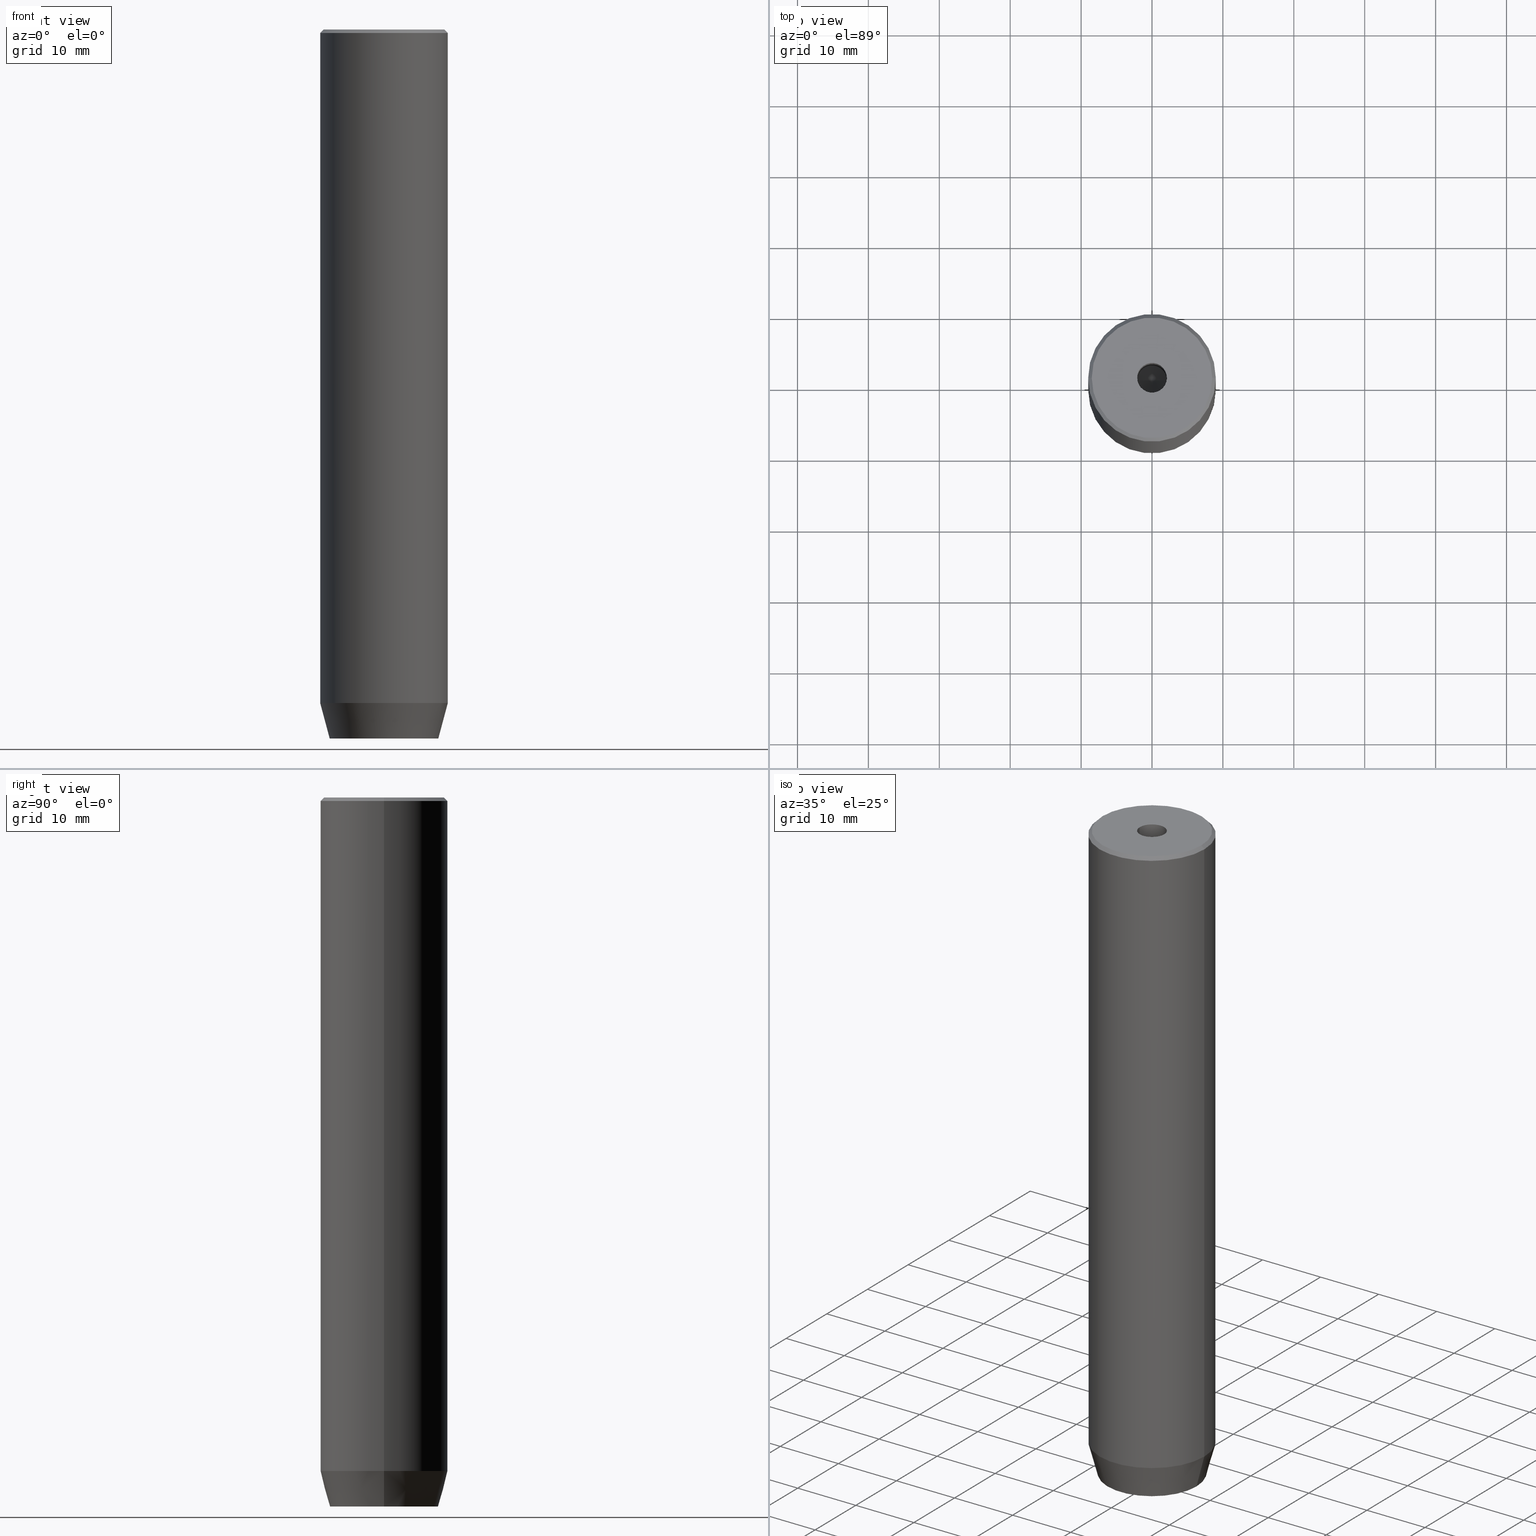
[diagram: canonical four-view strip — front | top / right | iso, engineering-drawing reading convention]
A machine part, canonical four-view strip (front | top / right | iso — engineering-drawing reading convention). The complete STEP part file that produces these views, byte-faithful:
ISO-10303-21;
HEADER;
FILE_DESCRIPTION (( 'STEP AP203' ),
    '1' );
FILE_NAME ('659f.STEP',
    '2024-01-02T20:37:00',
    ( '' ),
    ( '' ),
    'SwSTEP 2.0',
    'SolidWorks 2019',
    '' );
FILE_SCHEMA (( 'CONFIG_CONTROL_DESIGN' ));
ENDSEC;

DATA;
#1 = FACE_OUTER_BOUND ( 'NONE', #578, .T. ) ;
#2 = VERTEX_POINT ( 'NONE', #46 ) ;
#3 = PERSON_AND_ORGANIZATION ( #60, #258 ) ;
#4 = CARTESIAN_POINT ( 'NONE',  ( -5.207640850796248781E-15, 0.000000000000000000, -21.26180729995787999 ) ) ;
#5 = CARTESIAN_POINT ( 'NONE',  ( 1.500000000000000222, -2.598076211353315568, -97.20000000000000284 ) ) ;
#6 = VECTOR ( 'NONE', #280, 1000.000000000000000 ) ;
#7 = APPROVAL ( #540, 'NEUR�EN�' ) ;
#8 = DIRECTION ( 'NONE',  ( 0.000000000000000000, 0.000000000000000000, 1.000000000000000000 ) ) ;
#9 = ADVANCED_FACE ( 'NONE', ( #105 ), #510, .F. ) ;
#10 = DIRECTION ( 'NONE',  ( -0.000000000000000000, -0.000000000000000000, 1.000000000000000000 ) ) ;
#11 = ORIENTED_EDGE ( 'NONE', *, *, #97, .F. ) ;
#12 = ORIENTED_EDGE ( 'NONE', *, *, #469, .T. ) ;
#13 = PERSON_AND_ORGANIZATION_ROLE ( 'design_owner' ) ;
#14 = CARTESIAN_POINT ( 'NONE',  ( -2.168404344971008868E-16, -3.464101615137754830, -100.0000000000000000 ) ) ;
#15 = CALENDAR_DATE ( 2024, 2, 1 ) ;
#16 = DIRECTION ( 'NONE',  ( -0.8660254037844385966, -0.5000000000000001110, 0.000000000000000000 ) ) ;
#17 = CC_DESIGN_APPROVAL ( #7, ( #451 ) ) ;
#18 = EDGE_CURVE ( 'NONE', #52, #363, #107, .T. ) ;
#19 = DIRECTION ( 'NONE',  ( 1.000000000000000000, 0.000000000000000000, 0.000000000000000000 ) ) ;
#20 = DIRECTION ( 'NONE',  ( 0.8660254037844385966, -0.5000000000000001110, 0.000000000000000000 ) ) ;
#21 = DIRECTION ( 'NONE',  ( -0.000000000000000000, -0.000000000000000000, 1.000000000000000000 ) ) ;
#22 = APPROVAL ( #500, 'NEUR�EN�' ) ;
#23 = CARTESIAN_POINT ( 'NONE',  ( -1.084202172485504434E-16, 3.464101615137754830, -97.20000000000000284 ) ) ;
#24 = EDGE_CURVE ( 'NONE', #128, #407, #164, .T. ) ;
#25 = DIRECTION ( 'NONE',  ( -0.000000000000000000, -0.000000000000000000, 1.000000000000000000 ) ) ;
#26 = ORIENTED_EDGE ( 'NONE', *, *, #97, .T. ) ;
#27 = ORIENTED_EDGE ( 'NONE', *, *, #427, .T. ) ;
#28 = CARTESIAN_POINT ( 'NONE',  ( -1.500000000000000666, -2.598076211353316456, -97.20000000000000284 ) ) ;
#29 = ORIENTED_EDGE ( 'NONE', *, *, #359, .T. ) ;
#30 = ADVANCED_FACE ( 'NONE', ( #476 ), #424, .F. ) ;
#31 = LINE ( 'NONE', #353, #113 ) ;
#32 = DIRECTION ( 'NONE',  ( -0.000000000000000000, -0.000000000000000000, 1.000000000000000000 ) ) ;
#33 = COORDINATED_UNIVERSAL_TIME_OFFSET ( 1, 0, .AHEAD. ) ;
#34 = CARTESIAN_POINT ( 'NONE',  ( 3.000000000000000000, 0.000000000000000000, -97.20000000000000284 ) ) ;
#35 = FACE_OUTER_BOUND ( 'NONE', #274, .T. ) ;
#36 = UNCERTAINTY_MEASURE_WITH_UNIT (LENGTH_MEASURE( 1.000000000000000082E-05 ), #278, 'distance_accuracy_value', 'NONE');
#37 = LOCAL_TIME ( 21, 37, 0.000000000000000000, #42 ) ;
#38 = LINE ( 'NONE', #543, #189 ) ;
#39 = ORIENTED_EDGE ( 'NONE', *, *, #408, .F. ) ;
#40 = ORIENTED_EDGE ( 'NONE', *, *, #205, .T. ) ;
#41 = EDGE_CURVE ( 'NONE', #480, #128, #339, .T. ) ;
#42 = COORDINATED_UNIVERSAL_TIME_OFFSET ( 1, 0, .AHEAD. ) ;
#43 = AXIS2_PLACEMENT_3D ( 'NONE', #346, #530, #219 ) ;
#44 = LINE ( 'NONE', #92, #241 ) ;
#45 = VERTEX_POINT ( 'NONE', #555 ) ;
#46 = CARTESIAN_POINT ( 'NONE',  ( -2.168404344971008868E-16, -3.464101615137754830, -97.20000000000000284 ) ) ;
#47 = DATE_AND_TIME ( #181, #37 ) ;
#48 = DIRECTION ( 'NONE',  ( -1.000000000000000000, 0.000000000000000000, -0.000000000000000000 ) ) ;
#49 = DIRECTION ( 'NONE',  ( 1.000000000000000000, 0.000000000000000000, 0.000000000000000000 ) ) ;
#50 = EDGE_LOOP ( 'NONE', ( #376, #119, #39, #29 ) ) ;
#51 = CC_DESIGN_PERSON_AND_ORGANIZATION_ASSIGNMENT ( #3, #446, ( #103 ) ) ;
#52 = VERTEX_POINT ( 'NONE', #329 ) ;
#53 = EDGE_CURVE ( 'NONE', #392, #407, #193, .T. ) ;
#54 = DIRECTION ( 'NONE',  ( 1.000000000000000000, 0.000000000000000000, 0.000000000000000000 ) ) ;
#55 = ORIENTED_EDGE ( 'NONE', *, *, #173, .F. ) ;
#56 = VECTOR ( 'NONE', #247, 1000.000000000000000 ) ;
#57 = AXIS2_PLACEMENT_3D ( 'NONE', #402, #131, #179 ) ;
#58 = CARTESIAN_POINT ( 'NONE',  ( 0.000000000000000000, 0.000000000000000000, -95.00000000000000000 ) ) ;
#59 = PERSON_AND_ORGANIZATION ( #60, #258 ) ;
#60 = PERSON ( 'NEUR�EN�', 'NEUR�EN�', 'NEUR�EN�', ('NEUR�EN�'), ('NEUR�EN�'), ('NEUR�EN�') ) ;
#61 = DIRECTION ( 'NONE',  ( 0.7071067811865549002, 8.659560562355022838E-17, -0.7071067811865401342 ) ) ;
#62 = ADVANCED_FACE ( 'NONE', ( #282 ), #538, .F. ) ;
#63 = DIRECTION ( 'NONE',  ( 1.000000000000000000, 0.000000000000000000, 0.000000000000000000 ) ) ;
#64 = VECTOR ( 'NONE', #145, 1000.000000000000000 ) ;
#65 = VECTOR ( 'NONE', #421, 1000.000000000000000 ) ;
#66 = LINE ( 'NONE', #430, #454 ) ;
#67 = CARTESIAN_POINT ( 'NONE',  ( -3.000000000000000000, -1.732050807568877859, -97.20000000000000284 ) ) ;
#68 = PRODUCT ( '659f', '659f', '', ( #327 ) ) ;
#69 = DIRECTION ( 'NONE',  ( -0.000000000000000000, -0.000000000000000000, 1.000000000000000000 ) ) ;
#70 = ADVANCED_FACE ( 'NONE', ( #493 ), #86, .F. ) ;
#71 = DIRECTION ( 'NONE',  ( -0.000000000000000000, -0.000000000000000000, 1.000000000000000000 ) ) ;
#72 = ORIENTED_EDGE ( 'NONE', *, *, #397, .T. ) ;
#73 = CC_DESIGN_APPROVAL ( #22, ( #103 ) ) ;
#74 = ORIENTED_EDGE ( 'NONE', *, *, #448, .F. ) ;
#75 = CARTESIAN_POINT ( 'NONE',  ( 3.000000000000000000, -1.732050807568876527, -97.20000000000000284 ) ) ;
#76 = VECTOR ( 'NONE', #431, 1000.000000000000000 ) ;
#77 = ORIENTED_EDGE ( 'NONE', *, *, #348, .F. ) ;
#78 = ORIENTED_EDGE ( 'NONE', *, *, #375, .F. ) ;
#79 = DIRECTION ( 'NONE',  ( 1.000000000000000000, 0.000000000000000000, 0.000000000000000000 ) ) ;
#80 = EDGE_CURVE ( 'NONE', #177, #272, #312, .T. ) ;
#81 = ORIENTED_EDGE ( 'NONE', *, *, #236, .T. ) ;
#82 = DIRECTION ( 'NONE',  ( -0.000000000000000000, -0.000000000000000000, 1.000000000000000000 ) ) ;
#83 = ORIENTED_EDGE ( 'NONE', *, *, #80, .T. ) ;
#84 = CARTESIAN_POINT ( 'NONE',  ( -3.000000000000000000, -1.732050807568877859, -100.0000000000000000 ) ) ;
#85 = VECTOR ( 'NONE', #100, 1000.000000000000000 ) ;
#86 = PLANE ( 'NONE',  #253 ) ;
#87 = CARTESIAN_POINT ( 'NONE',  ( -9.000000000000000000, 1.102182119232617714E-15, -95.00000000000000000 ) ) ;
#88 = CALENDAR_DATE ( 2024, 2, 1 ) ;
#89 = DIRECTION ( 'NONE',  ( 1.000000000000000000, 0.000000000000000000, 0.000000000000000000 ) ) ;
#90 = ORIENTED_EDGE ( 'NONE', *, *, #415, .F. ) ;
#91 = ADVANCED_FACE ( 'NONE', ( #459, #151 ), #361, .T. ) ;
#92 = CARTESIAN_POINT ( 'NONE',  ( 3.000000000000000000, 1.732050807568876527, -97.20000000000000284 ) ) ;
#93 = VERTEX_POINT ( 'NONE', #4 ) ;
#94 = VECTOR ( 'NONE', #25, 1000.000000000000000 ) ;
#95 = DIRECTION ( 'NONE',  ( -0.000000000000000000, -0.000000000000000000, 1.000000000000000000 ) ) ;
#96 = ORIENTED_EDGE ( 'NONE', *, *, #436, .F. ) ;
#97 = EDGE_CURVE ( 'NONE', #93, #106, #195, .T. ) ;
#98 = DIRECTION ( 'NONE',  ( 1.000000000000000000, 0.000000000000000000, 0.000000000000000000 ) ) ;
#99 = ORIENTED_EDGE ( 'NONE', *, *, #513, .T. ) ;
#100 = DIRECTION ( 'NONE',  ( -0.000000000000000000, -0.000000000000000000, 1.000000000000000000 ) ) ;
#101 = ADVANCED_FACE ( 'NONE', ( #344 ), #426, .F. ) ;
#102 = DATE_AND_TIME ( #156, #273 ) ;
#103 = PRODUCT_DEFINITION_FORMATION_WITH_SPECIFIED_SOURCE ( 'LIBOVOLN�', '', #68, .NOT_KNOWN. ) ;
#104 = DIRECTION ( 'NONE',  ( -1.000000000000000000, 0.000000000000000000, -0.000000000000000000 ) ) ;
#105 = FACE_OUTER_BOUND ( 'NONE', #217, .T. ) ;
#106 = VERTEX_POINT ( 'NONE', #297 ) ;
#107 = CIRCLE ( 'NONE', #443, 7.660254037844380193 ) ;
#108 = CONICAL_SURFACE ( 'NONE', #233, 9.000000000000000000, 0.2617993877991502405 ) ;
#109 = APPROVAL_ROLE ( '' ) ;
#110 = CARTESIAN_POINT ( 'NONE',  ( -1.500000000000000666, -2.598076211353316456, -97.20000000000000284 ) ) ;
#111 = CARTESIAN_POINT ( 'NONE',  ( 0.000000000000000000, 0.000000000000000000, -97.20000000000000284 ) ) ;
#112 = PLANE ( 'NONE',  #551 ) ;
#113 = VECTOR ( 'NONE', #129, 1000.000000000000114 ) ;
#114 = VECTOR ( 'NONE', #333, 999.9999999999998863 ) ;
#115 = CARTESIAN_POINT ( 'NONE',  ( 2.099999999999996092, 0.000000000000000000, -20.00000000000000000 ) ) ;
#116 = CC_DESIGN_DATE_AND_TIME_ASSIGNMENT ( #467, #457, ( #483 ) ) ;
#117 = EDGE_CURVE ( 'NONE', #93, #323, #248, .T. ) ;
#118 = FACE_OUTER_BOUND ( 'NONE', #194, .T. ) ;
#119 = ORIENTED_EDGE ( 'NONE', *, *, #336, .F. ) ;
#120 = DIRECTION ( 'NONE',  ( -0.000000000000000000, -0.000000000000000000, 1.000000000000000000 ) ) ;
#121 = EDGE_LOOP ( 'NONE', ( #548, #162 ) ) ;
#122 = ORIENTED_EDGE ( 'NONE', *, *, #436, .T. ) ;
#123 = VECTOR ( 'NONE', #82, 1000.000000000000000 ) ;
#124 = CARTESIAN_POINT ( 'NONE',  ( -3.000000000000000888, 1.732050807568876527, -97.20000000000000284 ) ) ;
#125 = EDGE_CURVE ( 'NONE', #407, #471, #572, .T. ) ;
#126 = CC_DESIGN_PERSON_AND_ORGANIZATION_ASSIGNMENT ( #196, #377, ( #483 ) ) ;
#127 = CARTESIAN_POINT ( 'NONE',  ( -2.168404344971008868E-16, -3.464101615137754830, -97.20000000000000284 ) ) ;
#128 = VERTEX_POINT ( 'NONE', #466 ) ;
#129 = DIRECTION ( 'NONE',  ( 0.2588190451025214611, 0.000000000000000000, 0.9659258262890679791 ) ) ;
#130 = CC_DESIGN_APPROVAL ( #575, ( #483 ) ) ;
#131 = DIRECTION ( 'NONE',  ( 0.5000000000000001110, -0.8660254037844385966, 0.000000000000000000 ) ) ;
#132 = DIRECTION ( 'NONE',  ( 1.000000000000000000, 0.000000000000000000, 0.000000000000000000 ) ) ;
#133 = EDGE_CURVE ( 'NONE', #106, #511, #468, .T. ) ;
#134 = VECTOR ( 'NONE', #16, 1000.000000000000000 ) ;
#135 = VECTOR ( 'NONE', #386, 1000.000000000000000 ) ;
#136 = APPROVAL_ROLE ( '' ) ;
#137 = ORIENTED_EDGE ( 'NONE', *, *, #262, .T. ) ;
#138 = CARTESIAN_POINT ( 'NONE',  ( 0.000000000000000000, 0.000000000000000000, -1.990051048614449116E-16 ) ) ;
#139 = VERTEX_POINT ( 'NONE', #526 ) ;
#140 = PERSON_AND_ORGANIZATION ( #60, #258 ) ;
#141 = CARTESIAN_POINT ( 'NONE',  ( 0.000000000000000000, 0.000000000000000000, -1.990051048614449116E-16 ) ) ;
#142 = ORIENTED_EDGE ( 'NONE', *, *, #168, .T. ) ;
#143 = DIRECTION ( 'NONE',  ( 0.000000000000000000, 0.000000000000000000, -1.000000000000000000 ) ) ;
#144 = CC_DESIGN_PERSON_AND_ORGANIZATION_ASSIGNMENT ( #373, #13, ( #68 ) ) ;
#145 = DIRECTION ( 'NONE',  ( 0.8660254037844385966, -0.5000000000000001110, 0.000000000000000000 ) ) ;
#146 = ORIENTED_EDGE ( 'NONE', *, *, #415, .T. ) ;
#147 = EDGE_CURVE ( 'NONE', #392, #246, #388, .T. ) ;
#148 = CARTESIAN_POINT ( 'NONE',  ( 0.000000000000000000, 3.464101615137754386, -100.0000000000000000 ) ) ;
#149 = ORIENTED_EDGE ( 'NONE', *, *, #147, .F. ) ;
#150 = ORIENTED_EDGE ( 'NONE', *, *, #199, .F. ) ;
#151 = FACE_OUTER_BOUND ( 'NONE', #121, .T. ) ;
#152 = APPROVAL_DATE_TIME ( #102, #575 ) ;
#153 = PLANE ( 'NONE',  #310 ) ;
#154 = ORIENTED_EDGE ( 'NONE', *, *, #348, .T. ) ;
#155 = EDGE_CURVE ( 'NONE', #514, #177, #289, .T. ) ;
#156 = CALENDAR_DATE ( 2024, 2, 1 ) ;
#157 = LINE ( 'NONE', #67, #76 ) ;
#158 = CARTESIAN_POINT ( 'NONE',  ( 0.000000000000000000, 0.000000000000000000, -100.0000000000000000 ) ) ;
#159 = EDGE_CURVE ( 'NONE', #480, #471, #428, .T. ) ;
#160 = VECTOR ( 'NONE', #391, 1000.000000000000000 ) ;
#161 = FACE_OUTER_BOUND ( 'NONE', #502, .T. ) ;
#162 = ORIENTED_EDGE ( 'NONE', *, *, #18, .F. ) ;
#163 = CARTESIAN_POINT ( 'NONE',  ( 0.000000000000000000, 0.000000000000000000, -20.00000000000000000 ) ) ;
#164 = LINE ( 'NONE', #525, #56 ) ;
#165 = CARTESIAN_POINT ( 'NONE',  ( -2.099999999999997424, 2.571758278209438506E-16, 0.000000000000000000 ) ) ;
#166 = ADVANCED_FACE ( 'NONE', ( #254 ), #153, .F. ) ;
#167 = FACE_OUTER_BOUND ( 'NONE', #581, .T. ) ;
#168 = EDGE_CURVE ( 'NONE', #547, #272, #157, .T. ) ;
#169 = ORIENTED_EDGE ( 'NONE', *, *, #147, .T. ) ;
#170 = CYLINDRICAL_SURFACE ( 'NONE', #371, 9.000000000000000000 ) ;
#171 = ADVANCED_BREP_SHAPE_REPRESENTATION ( '659f', ( #557, #220 ), #367 ) ;
#172 = ORIENTED_EDGE ( 'NONE', *, *, #125, .T. ) ;
#173 = EDGE_CURVE ( 'NONE', #246, #392, #586, .T. ) ;
#174 = CARTESIAN_POINT ( 'NONE',  ( 2.099999999999996092, 0.000000000000000000, -20.00000000000000000 ) ) ;
#175 = ORIENTED_EDGE ( 'NONE', *, *, #427, .F. ) ;
#176 = DIRECTION ( 'NONE',  ( -0.000000000000000000, -0.000000000000000000, 1.000000000000000000 ) ) ;
#177 = VERTEX_POINT ( 'NONE', #14 ) ;
#178 = CARTESIAN_POINT ( 'NONE',  ( 0.000000000000000000, 0.000000000000000000, 0.000000000000000000 ) ) ;
#179 = DIRECTION ( 'NONE',  ( 0.8660254037844385966, 0.5000000000000001110, 0.000000000000000000 ) ) ;
#180 = CARTESIAN_POINT ( 'NONE',  ( 0.000000000000000000, 0.000000000000000000, 0.000000000000000000 ) ) ;
#181 = CALENDAR_DATE ( 2024, 2, 1 ) ;
#182 = DIRECTION ( 'NONE',  ( -0.8660254037844385966, -0.5000000000000001110, 0.000000000000000000 ) ) ;
#183 = AXIS2_PLACEMENT_3D ( 'NONE', #406, #225, #403 ) ;
#184 = CARTESIAN_POINT ( 'NONE',  ( -3.000000000000000444, -7.511572993685800087E-16, -100.0000000000000000 ) ) ;
#185 = ORIENTED_EDGE ( 'NONE', *, *, #117, .F. ) ;
#186 = DIRECTION ( 'NONE',  ( -0.000000000000000000, -0.000000000000000000, 1.000000000000000000 ) ) ;
#187 = ORIENTED_EDGE ( 'NONE', *, *, #205, .F. ) ;
#188 = LINE ( 'NONE', #184, #6 ) ;
#189 = VECTOR ( 'NONE', #587, 1000.000000000000000 ) ;
#190 = CONICAL_SURFACE ( 'NONE', #319, 2.099999999999996092, 1.029744258676652091 ) ;
#191 = ORIENTED_EDGE ( 'NONE', *, *, #375, .T. ) ;
#192 = EDGE_LOOP ( 'NONE', ( #343, #169, #423, #450 ) ) ;
#193 = LINE ( 'NONE', #369, #85 ) ;
#194 = EDGE_LOOP ( 'NONE', ( #508, #235 ) ) ;
#195 = LINE ( 'NONE', #243, #65 ) ;
#196 = PERSON_AND_ORGANIZATION ( #60, #258 ) ;
#197 = CC_DESIGN_PERSON_AND_ORGANIZATION_ASSIGNMENT ( #495, #230, ( #103 ) ) ;
#198 = DIRECTION ( 'NONE',  ( 1.000000000000000000, 0.000000000000000000, 0.000000000000000000 ) ) ;
#199 = EDGE_CURVE ( 'NONE', #52, #392, #565, .T. ) ;
#200 = CARTESIAN_POINT ( 'NONE',  ( 0.000000000000000000, 0.000000000000000000, 0.000000000000000000 ) ) ;
#201 = LINE ( 'NONE', #472, #114 ) ;
#202 = CONICAL_SURFACE ( 'NONE', #501, 2.099999999999996092, 1.029744258676652091 ) ;
#203 = VECTOR ( 'NONE', #537, 1000.000000000000000 ) ;
#204 = DIRECTION ( 'NONE',  ( 0.000000000000000000, 0.000000000000000000, -1.000000000000000000 ) ) ;
#205 = EDGE_CURVE ( 'NONE', #139, #390, #201, .T. ) ;
#206 = CARTESIAN_POINT ( 'NONE',  ( 0.000000000000000000, 0.000000000000000000, 0.000000000000000000 ) ) ;
#207 = ADVANCED_FACE ( 'NONE', ( #161 ), #112, .T. ) ;
#208 = DIRECTION ( 'NONE',  ( 0.000000000000000000, 0.000000000000000000, -1.000000000000000000 ) ) ;
#209 = DIRECTION ( 'NONE',  ( 0.000000000000000000, -0.000000000000000000, 1.000000000000000000 ) ) ;
#210 = APPROVAL_PERSON_ORGANIZATION ( #59, #575, #109 ) ;
#211 = EDGE_LOOP ( 'NONE', ( #74, #435, #507, #416, #279, #90 ) ) ;
#212 = AXIS2_PLACEMENT_3D ( 'NONE', #384, #422, #198 ) ;
#213 = CONICAL_SURFACE ( 'NONE', #541, 8.499999999999980460, 0.7853981633974587151 ) ;
#214 = CARTESIAN_POINT ( 'NONE',  ( 9.000000000000000000, 0.000000000000000000, 0.000000000000000000 ) ) ;
#215 = ORIENTED_EDGE ( 'NONE', *, *, #224, .F. ) ;
#216 = LINE ( 'NONE', #342, #135 ) ;
#217 = EDGE_LOOP ( 'NONE', ( #259, #215, #265, #420 ) ) ;
#218 = VERTEX_POINT ( 'NONE', #290 ) ;
#219 = DIRECTION ( 'NONE',  ( 1.000000000000000000, 0.000000000000000000, 0.000000000000000000 ) ) ;
#220 = AXIS2_PLACEMENT_3D ( 'NONE', #515, #8, #286 ) ;
#221 = ORIENTED_EDGE ( 'NONE', *, *, #173, .T. ) ;
#222 = CARTESIAN_POINT ( 'NONE',  ( 7.660254037844380193, 0.000000000000000000, -100.0000000000000000 ) ) ;
#223 = AXIS2_PLACEMENT_3D ( 'NONE', #58, #244, #19 ) ;
#224 = EDGE_CURVE ( 'NONE', #323, #106, #482, .T. ) ;
#225 = DIRECTION ( 'NONE',  ( -0.4999999999999999445, 0.8660254037844387076, 0.000000000000000000 ) ) ;
#226 = EDGE_CURVE ( 'NONE', #128, #480, #370, .T. ) ;
#227 = SECURITY_CLASSIFICATION_LEVEL ( 'unclassified' ) ;
#228 = FACE_OUTER_BOUND ( 'NONE', #192, .T. ) ;
#229 = ORIENTED_EDGE ( 'NONE', *, *, #18, .T. ) ;
#230 = PERSON_AND_ORGANIZATION_ROLE ( 'creator' ) ;
#231 = DIRECTION ( 'NONE',  ( -0.000000000000000000, -0.000000000000000000, 1.000000000000000000 ) ) ;
#232 = ORIENTED_EDGE ( 'NONE', *, *, #448, .T. ) ;
#233 = AXIS2_PLACEMENT_3D ( 'NONE', #439, #176, #434 ) ;
#234 = ADVANCED_FACE ( 'NONE', ( #249 ), #532, .T. ) ;
#235 = ORIENTED_EDGE ( 'NONE', *, *, #41, .T. ) ;
#236 = EDGE_CURVE ( 'NONE', #390, #218, #66, .T. ) ;
#237 = DIRECTION ( 'NONE',  ( -0.000000000000000000, -0.000000000000000000, 1.000000000000000000 ) ) ;
#238 = DIRECTION ( 'NONE',  ( 1.000000000000000000, 0.000000000000000000, 0.000000000000000000 ) ) ;
#239 = LOCAL_TIME ( 21, 37, 0.000000000000000000, #584 ) ;
#240 = VERTEX_POINT ( 'NONE', #385 ) ;
#241 = VECTOR ( 'NONE', #315, 1000.000000000000000 ) ;
#242 = VECTOR ( 'NONE', #61, 1000.000000000000000 ) ;
#243 = CARTESIAN_POINT ( 'NONE',  ( -2.099999999999996092, 2.571758278209436534E-16, -20.00000000000000000 ) ) ;
#244 = DIRECTION ( 'NONE',  ( -0.000000000000000000, -0.000000000000000000, 1.000000000000000000 ) ) ;
#245 = ADVANCED_FACE ( 'NONE', ( #338, #118 ), #396, .T. ) ;
#246 = VERTEX_POINT ( 'NONE', #303 ) ;
#247 = DIRECTION ( 'NONE',  ( -0.7071067811865549002, 0.000000000000000000, -0.7071067811865401342 ) ) ;
#248 = LINE ( 'NONE', #115, #334 ) ;
#249 = FACE_OUTER_BOUND ( 'NONE', #307, .T. ) ;
#250 = CC_DESIGN_PERSON_AND_ORGANIZATION_ASSIGNMENT ( #414, #306, ( #451 ) ) ;
#251 = VECTOR ( 'NONE', #182, 1000.000000000000000 ) ;
#252 = EDGE_CURVE ( 'NONE', #433, #514, #216, .T. ) ;
#253 = AXIS2_PLACEMENT_3D ( 'NONE', #34, #405, #542 ) ;
#254 = FACE_OUTER_BOUND ( 'NONE', #283, .T. ) ;
#255 = DIRECTION ( 'NONE',  ( 2.503857664561933362E-16, -1.000000000000000000, 0.000000000000000000 ) ) ;
#256 = ADVANCED_FACE ( 'NONE', ( #528 ), #108, .T. ) ;
#257 = DIRECTION ( 'NONE',  ( -0.000000000000000000, -0.000000000000000000, 1.000000000000000000 ) ) ;
#258 = ORGANIZATION ( 'NEUR�EN�', 'NEUR�EN�', '' ) ;
#259 = ORIENTED_EDGE ( 'NONE', *, *, #133, .F. ) ;
#260 = CIRCLE ( 'NONE', #399, 2.099999999999998757 ) ;
#261 = LINE ( 'NONE', #28, #160 ) ;
#262 = EDGE_CURVE ( 'NONE', #2, #547, #261, .T. ) ;
#263 = DIRECTION ( 'NONE',  ( 1.000000000000000000, 0.000000000000000000, 0.000000000000000000 ) ) ;
#264 = LINE ( 'NONE', #124, #266 ) ;
#265 = ORIENTED_EDGE ( 'NONE', *, *, #271, .T. ) ;
#266 = VECTOR ( 'NONE', #484, 1000.000000000000000 ) ;
#267 = CARTESIAN_POINT ( 'NONE',  ( 0.000000000000000000, 0.000000000000000000, -100.0000000000000000 ) ) ;
#268 = AXIS2_PLACEMENT_3D ( 'NONE', #206, #383, #292 ) ;
#269 = CARTESIAN_POINT ( 'NONE',  ( -3.000000000000000888, 1.732050807568876527, -100.0000000000000000 ) ) ;
#270 = LINE ( 'NONE', #417, #64 ) ;
#271 = EDGE_CURVE ( 'NONE', #323, #240, #571, .T. ) ;
#272 = VERTEX_POINT ( 'NONE', #84 ) ;
#273 = LOCAL_TIME ( 21, 37, 0.000000000000000000, #461 ) ;
#274 = EDGE_LOOP ( 'NONE', ( #185, #26, #99 ) ) ;
#275 = DIRECTION ( 'NONE',  ( -0.8660254037844385966, 0.5000000000000001110, 0.000000000000000000 ) ) ;
#276 = AXIS2_PLACEMENT_3D ( 'NONE', #337, #328, #294 ) ;
#277 = ORIENTED_EDGE ( 'NONE', *, *, #236, .F. ) ;
#278 =( LENGTH_UNIT ( ) NAMED_UNIT ( * ) SI_UNIT ( .MILLI., .METRE. ) );
#279 = ORIENTED_EDGE ( 'NONE', *, *, #252, .F. ) ;
#280 = DIRECTION ( 'NONE',  ( -2.503857664561932376E-16, 1.000000000000000000, 0.000000000000000000 ) ) ;
#281 = ORIENTED_EDGE ( 'NONE', *, *, #397, .F. ) ;
#282 = FACE_OUTER_BOUND ( 'NONE', #50, .T. ) ;
#283 = EDGE_LOOP ( 'NONE', ( #12, #77, #395, #142 ) ) ;
#284 = LOCAL_TIME ( 21, 37, 0.000000000000000000, #33 ) ;
#285 = ADVANCED_FACE ( 'NONE', ( #167 ), #213, .T. ) ;
#286 = DIRECTION ( 'NONE',  ( 1.000000000000000000, 0.000000000000000000, 0.000000000000000000 ) ) ;
#287 = DIRECTION ( 'NONE',  ( -0.000000000000000000, -0.000000000000000000, 1.000000000000000000 ) ) ;
#288 = EDGE_LOOP ( 'NONE', ( #150, #229, #191, #149 ) ) ;
#289 = LINE ( 'NONE', #509, #134 ) ;
#290 = CARTESIAN_POINT ( 'NONE',  ( 3.000000000000000000, 1.732050807568876527, -97.20000000000000284 ) ) ;
#291 = ADVANCED_FACE ( 'NONE', ( #577 ), #302, .T. ) ;
#292 = DIRECTION ( 'NONE',  ( 1.000000000000000000, 0.000000000000000000, 0.000000000000000000 ) ) ;
#293 = ORIENTED_EDGE ( 'NONE', *, *, #133, .T. ) ;
#294 = DIRECTION ( 'NONE',  ( -1.000000000000000000, 0.000000000000000000, 0.000000000000000000 ) ) ;
#295 = AXIS2_PLACEMENT_3D ( 'NONE', #138, #231, #132 ) ;
#296 = AXIS2_PLACEMENT_3D ( 'NONE', #163, #21, #523 ) ;
#297 = CARTESIAN_POINT ( 'NONE',  ( -2.099999999999996092, 2.571758278209436534E-16, -20.00000000000000000 ) ) ;
#298 = DIRECTION ( 'NONE',  ( -0.000000000000000000, -0.000000000000000000, 1.000000000000000000 ) ) ;
#299 = DIRECTION ( 'NONE',  ( -1.000000000000000000, 0.000000000000000000, 0.000000000000000000 ) ) ;
#300 = VECTOR ( 'NONE', #340, 1000.000000000000000 ) ;
#301 = ORIENTED_EDGE ( 'NONE', *, *, #41, .F. ) ;
#302 = CONICAL_SURFACE ( 'NONE', #533, 9.000000000000000000, 0.2617993877991502405 ) ;
#303 = CARTESIAN_POINT ( 'NONE',  ( 9.000000000000000000, 0.000000000000000000, -95.00000000000000000 ) ) ;
#304 = ORIENTED_EDGE ( 'NONE', *, *, #583, .F. ) ;
#305 = CARTESIAN_POINT ( 'NONE',  ( -3.000000000000000444, -7.511572993685800087E-16, -97.20000000000000284 ) ) ;
#306 = PERSON_AND_ORGANIZATION_ROLE ( 'classification_officer' ) ;
#307 = EDGE_LOOP ( 'NONE', ( #301, #550, #326, #504 ) ) ;
#308 = DIRECTION ( 'NONE',  ( 1.000000000000000000, 0.000000000000000000, 0.000000000000000000 ) ) ;
#309 = LINE ( 'NONE', #321, #317 ) ;
#310 = AXIS2_PLACEMENT_3D ( 'NONE', #374, #519, #255 ) ;
#311 = APPROVAL_DATE_TIME ( #404, #22 ) ;
#312 = LINE ( 'NONE', #474, #320 ) ;
#313 = CARTESIAN_POINT ( 'NONE',  ( 8.499999999999980460, 1.071565949253932744E-15, 0.000000000000000000 ) ) ;
#314 = SHAPE_DEFINITION_REPRESENTATION ( #389, #171 ) ;
#315 = DIRECTION ( 'NONE',  ( -0.000000000000000000, -0.000000000000000000, -1.000000000000000000 ) ) ;
#316 = ADVANCED_FACE ( 'NONE', ( #535 ), #170, .T. ) ;
#317 = VECTOR ( 'NONE', #411, 1000.000000000000000 ) ;
#318 = ORIENTED_EDGE ( 'NONE', *, *, #513, .F. ) ;
#319 = AXIS2_PLACEMENT_3D ( 'NONE', #360, #186, #98 ) ;
#320 = VECTOR ( 'NONE', #520, 1000.000000000000000 ) ;
#321 = CARTESIAN_POINT ( 'NONE',  ( 3.000000000000000000, 0.000000000000000000, -97.20000000000000284 ) ) ;
#322 = ORIENTED_EDGE ( 'NONE', *, *, #24, .T. ) ;
#323 = VERTEX_POINT ( 'NONE', #174 ) ;
#324 = EDGE_CURVE ( 'NONE', #471, #407, #444, .T. ) ;
#325 = CARTESIAN_POINT ( 'NONE',  ( 0.000000000000000000, 7.660254037844380193, -100.0000000000000000 ) ) ;
#326 = ORIENTED_EDGE ( 'NONE', *, *, #125, .F. ) ;
#327 = MECHANICAL_CONTEXT ( 'NONE', #456, 'mechanical' ) ;
#328 = DIRECTION ( 'NONE',  ( 0.000000000000000000, 0.000000000000000000, -1.000000000000000000 ) ) ;
#329 = CARTESIAN_POINT ( 'NONE',  ( -7.660254037844380193, 1.020146339021394272E-15, -100.0000000000000000 ) ) ;
#330 = APPROVAL_PERSON_ORGANIZATION ( #409, #7, #136 ) ;
#331 = EDGE_LOOP ( 'NONE', ( #221, #349, #172, #462 ) ) ;
#332 = COORDINATED_UNIVERSAL_TIME_OFFSET ( 1, 0, .AHEAD. ) ;
#333 = DIRECTION ( 'NONE',  ( 0.8660254037844387076, 0.4999999999999999445, 0.000000000000000000 ) ) ;
#334 = VECTOR ( 'NONE', #554, 1000.000000000000000 ) ;
#335 = DIRECTION ( 'NONE',  ( -0.000000000000000000, -0.000000000000000000, 1.000000000000000000 ) ) ;
#336 = EDGE_CURVE ( 'NONE', #2, #177, #579, .T. ) ;
#337 = CARTESIAN_POINT ( 'NONE',  ( 0.000000000000000000, 0.000000000000000000, 0.000000000000000000 ) ) ;
#338 = FACE_BOUND ( 'NONE', #341, .T. ) ;
#339 = CIRCLE ( 'NONE', #429, 8.499999999999980460 ) ;
#340 = DIRECTION ( 'NONE',  ( -2.503857664561932376E-16, 1.000000000000000000, 0.000000000000000000 ) ) ;
#341 = EDGE_LOOP ( 'NONE', ( #304, #96 ) ) ;
#342 = CARTESIAN_POINT ( 'NONE',  ( 3.000000000000000000, 0.000000000000000000, -100.0000000000000000 ) ) ;
#343 = ORIENTED_EDGE ( 'NONE', *, *, #53, .F. ) ;
#344 = FACE_OUTER_BOUND ( 'NONE', #534, .T. ) ;
#345 = ORIENTED_EDGE ( 'NONE', *, *, #408, .T. ) ;
#346 = CARTESIAN_POINT ( 'NONE',  ( 0.000000000000000000, 0.000000000000000000, -0.5000000000000091038 ) ) ;
#347 = EDGE_LOOP ( 'NONE', ( #318, #293, #122, #489 ) ) ;
#348 = EDGE_CURVE ( 'NONE', #139, #487, #264, .T. ) ;
#349 = ORIENTED_EDGE ( 'NONE', *, *, #53, .T. ) ;
#350 = CLOSED_SHELL ( 'NONE', ( #30, #492, #234, #256, #316, #91, #245, #558, #291, #285, #566, #166, #101, #62, #70, #499, #207, #379, #9 ) ) ;
#351 = LINE ( 'NONE', #75, #381 ) ;
#352 = EDGE_CURVE ( 'NONE', #547, #139, #438, .T. ) ;
#353 = CARTESIAN_POINT ( 'NONE',  ( 9.000000000000000000, 0.000000000000000000, -95.00000000000000000 ) ) ;
#354 = CARTESIAN_POINT ( 'NONE',  ( 3.000000000000000000, -1.732050807568876527, -100.0000000000000000 ) ) ;
#355 = APPROVAL_ROLE ( '' ) ;
#356 = CARTESIAN_POINT ( 'NONE',  ( 3.000000000000000000, 1.732050807568876527, -100.0000000000000000 ) ) ;
#357 = AXIS2_PLACEMENT_3D ( 'NONE', #445, #209, #263 ) ;
#358 = APPROVAL_DATE_TIME ( #442, #7 ) ;
#359 = EDGE_CURVE ( 'NONE', #45, #514, #351, .T. ) ;
#360 = CARTESIAN_POINT ( 'NONE',  ( 0.000000000000000000, 0.000000000000000000, -20.00000000000000000 ) ) ;
#361 = PLANE ( 'NONE',  #465 ) ;
#362 = CARTESIAN_POINT ( 'NONE',  ( 1.500000000000000222, 2.598076211353315568, -97.20000000000000284 ) ) ;
#363 = VERTEX_POINT ( 'NONE', #222 ) ;
#364 = ORIENTED_EDGE ( 'NONE', *, *, #199, .T. ) ;
#365 = CARTESIAN_POINT ( 'NONE',  ( 9.000000000000000000, 0.000000000000000000, -0.5000000000000091038 ) ) ;
#366 = VECTOR ( 'NONE', #455, 999.9999999999998863 ) ;
#367 =( GEOMETRIC_REPRESENTATION_CONTEXT ( 3 ) GLOBAL_UNCERTAINTY_ASSIGNED_CONTEXT ( ( #36 ) ) GLOBAL_UNIT_ASSIGNED_CONTEXT ( ( #278, #380, #425 ) ) REPRESENTATION_CONTEXT ( 'NONE', 'WORKASPACE' ) );
#368 = EDGE_CURVE ( 'NONE', #246, #471, #401, .T. ) ;
#369 = CARTESIAN_POINT ( 'NONE',  ( -9.000000000000000000, 1.102182119232617714E-15, 0.000000000000000000 ) ) ;
#370 = CIRCLE ( 'NONE', #564, 8.499999999999980460 ) ;
#371 = AXIS2_PLACEMENT_3D ( 'NONE', #178, #120, #79 ) ;
#372 = ORIENTED_EDGE ( 'NONE', *, *, #475, .F. ) ;
#373 = PERSON_AND_ORGANIZATION ( #60, #258 ) ;
#374 = CARTESIAN_POINT ( 'NONE',  ( -3.000000000000000444, -7.511572993685800087E-16, -97.20000000000000284 ) ) ;
#375 = EDGE_CURVE ( 'NONE', #363, #246, #31, .T. ) ;
#376 = ORIENTED_EDGE ( 'NONE', *, *, #155, .T. ) ;
#377 = PERSON_AND_ORGANIZATION_ROLE ( 'creator' ) ;
#378 = DIRECTION ( 'NONE',  ( 1.000000000000000000, 0.000000000000000000, 0.000000000000000000 ) ) ;
#379 = ADVANCED_FACE ( 'NONE', ( #490 ), #202, .F. ) ;
#380 =( NAMED_UNIT ( * ) PLANE_ANGLE_UNIT ( ) SI_UNIT ( $, .RADIAN. ) );
#381 = VECTOR ( 'NONE', #527, 1000.000000000000000 ) ;
#382 = DIRECTION ( 'NONE',  ( 0.8660254037844385966, -0.5000000000000001110, 0.000000000000000000 ) ) ;
#383 = DIRECTION ( 'NONE',  ( -0.000000000000000000, -0.000000000000000000, 1.000000000000000000 ) ) ;
#384 = CARTESIAN_POINT ( 'NONE',  ( 0.000000000000000000, 0.000000000000000000, -95.00000000000000000 ) ) ;
#385 = CARTESIAN_POINT ( 'NONE',  ( 2.099999999999998757, 0.000000000000000000, -1.990051048614449116E-16 ) ) ;
#386 = DIRECTION ( 'NONE',  ( 0.000000000000000000, -1.000000000000000000, 0.000000000000000000 ) ) ;
#387 = EDGE_CURVE ( 'NONE', #363, #52, #453, .T. ) ;
#388 = CIRCLE ( 'NONE', #223, 9.000000000000000000 ) ;
#389 = PRODUCT_DEFINITION_SHAPE ( 'NONE', 'NONE',  #483 ) ;
#390 = VERTEX_POINT ( 'NONE', #23 ) ;
#391 = DIRECTION ( 'NONE',  ( -0.8660254037844385966, 0.5000000000000001110, 0.000000000000000000 ) ) ;
#392 = VERTEX_POINT ( 'NONE', #87 ) ;
#393 = ORIENTED_EDGE ( 'NONE', *, *, #159, .F. ) ;
#394 = CARTESIAN_POINT ( 'NONE',  ( 0.000000000000000000, 0.000000000000000000, -95.00000000000000000 ) ) ;
#395 = ORIENTED_EDGE ( 'NONE', *, *, #352, .F. ) ;
#396 = PLANE ( 'NONE',  #357 ) ;
#397 = EDGE_CURVE ( 'NONE', #218, #45, #309, .T. ) ;
#398 = CIRCLE ( 'NONE', #295, 2.099999999999998757 ) ;
#399 = AXIS2_PLACEMENT_3D ( 'NONE', #141, #95, #539 ) ;
#400 = AXIS2_PLACEMENT_3D ( 'NONE', #110, #562, #382 ) ;
#401 = LINE ( 'NONE', #214, #123 ) ;
#402 = CARTESIAN_POINT ( 'NONE',  ( 1.500000000000000222, -2.598076211353315568, -97.20000000000000284 ) ) ;
#403 = DIRECTION ( 'NONE',  ( -0.8660254037844387076, -0.4999999999999999445, 0.000000000000000000 ) ) ;
#404 = DATE_AND_TIME ( #491, #284 ) ;
#405 = DIRECTION ( 'NONE',  ( 1.000000000000000000, 0.000000000000000000, -0.000000000000000000 ) ) ;
#406 = CARTESIAN_POINT ( 'NONE',  ( -1.499999999999999556, 2.598076211353316012, -97.20000000000000284 ) ) ;
#407 = VERTEX_POINT ( 'NONE', #503 ) ;
#408 = EDGE_CURVE ( 'NONE', #45, #2, #449, .T. ) ;
#409 = PERSON_AND_ORGANIZATION ( #60, #258 ) ;
#410 = VECTOR ( 'NONE', #567, 1000.000000000000114 ) ;
#411 = DIRECTION ( 'NONE',  ( 0.000000000000000000, -1.000000000000000000, 0.000000000000000000 ) ) ;
#412 = ORIENTED_EDGE ( 'NONE', *, *, #352, .T. ) ;
#413 = FACE_OUTER_BOUND ( 'NONE', #505, .T. ) ;
#414 = PERSON_AND_ORGANIZATION ( #60, #258 ) ;
#415 = EDGE_CURVE ( 'NONE', #559, #433, #270, .T. ) ;
#416 = ORIENTED_EDGE ( 'NONE', *, *, #155, .F. ) ;
#417 = CARTESIAN_POINT ( 'NONE',  ( 1.500000000000000222, 2.598076211353315568, -100.0000000000000000 ) ) ;
#418 = CARTESIAN_POINT ( 'NONE',  ( 0.000000000000000000, 0.000000000000000000, 0.000000000000000000 ) ) ;
#419 = AXIS2_PLACEMENT_3D ( 'NONE', #200, #569, #238 ) ;
#420 = ORIENTED_EDGE ( 'NONE', *, *, #583, .T. ) ;
#421 = DIRECTION ( 'NONE',  ( -0.8571673007021111124, 1.049727191138617217E-16, 0.5150380749100562650 ) ) ;
#422 = DIRECTION ( 'NONE',  ( -0.000000000000000000, -0.000000000000000000, 1.000000000000000000 ) ) ;
#423 = ORIENTED_EDGE ( 'NONE', *, *, #368, .T. ) ;
#424 = CYLINDRICAL_SURFACE ( 'NONE', #419, 2.099999999999997424 ) ;
#425 =( NAMED_UNIT ( * ) SI_UNIT ( $, .STERADIAN. ) SOLID_ANGLE_UNIT ( ) );
#426 = PLANE ( 'NONE',  #400 ) ;
#427 = EDGE_CURVE ( 'NONE', #390, #559, #38, .T. ) ;
#428 = LINE ( 'NONE', #518, #242 ) ;
#429 = AXIS2_PLACEMENT_3D ( 'NONE', #418, #10, #54 ) ;
#430 = CARTESIAN_POINT ( 'NONE',  ( 1.500000000000000222, 2.598076211353315568, -97.20000000000000284 ) ) ;
#431 = DIRECTION ( 'NONE',  ( -0.000000000000000000, -0.000000000000000000, -1.000000000000000000 ) ) ;
#432 = DIRECTION ( 'NONE',  ( 1.000000000000000000, 0.000000000000000000, 0.000000000000000000 ) ) ;
#433 = VERTEX_POINT ( 'NONE', #356 ) ;
#434 = DIRECTION ( 'NONE',  ( 1.000000000000000000, 0.000000000000000000, 0.000000000000000000 ) ) ;
#435 = ORIENTED_EDGE ( 'NONE', *, *, #469, .F. ) ;
#436 = EDGE_CURVE ( 'NONE', #511, #240, #398, .T. ) ;
#437 = ORIENTED_EDGE ( 'NONE', *, *, #262, .F. ) ;
#438 = LINE ( 'NONE', #305, #300 ) ;
#439 = CARTESIAN_POINT ( 'NONE',  ( 0.000000000000000000, 0.000000000000000000, -95.00000000000000000 ) ) ;
#440 = CC_DESIGN_SECURITY_CLASSIFICATION ( #451, ( #103 ) ) ;
#441 = AXIS2_PLACEMENT_3D ( 'NONE', #267, #257, #432 ) ;
#442 = DATE_AND_TIME ( #88, #239 ) ;
#443 = AXIS2_PLACEMENT_3D ( 'NONE', #158, #69, #512 ) ;
#444 = CIRCLE ( 'NONE', #43, 9.000000000000000000 ) ;
#445 = CARTESIAN_POINT ( 'NONE',  ( 0.000000000000000000, 0.000000000000000000, 0.000000000000000000 ) ) ;
#446 = PERSON_AND_ORGANIZATION_ROLE ( 'design_supplier' ) ;
#447 = CARTESIAN_POINT ( 'NONE',  ( -3.000000000000000000, -1.732050807568877859, -97.20000000000000284 ) ) ;
#448 = EDGE_CURVE ( 'NONE', #487, #559, #506, .T. ) ;
#449 = LINE ( 'NONE', #5, #251 ) ;
#450 = ORIENTED_EDGE ( 'NONE', *, *, #324, .T. ) ;
#451 = SECURITY_CLASSIFICATION ( '', '', #227 ) ;
#452 = DESIGN_CONTEXT ( 'detailed design', #486, 'design' ) ;
#453 = CIRCLE ( 'NONE', #441, 7.660254037844380193 ) ;
#454 = VECTOR ( 'NONE', #20, 1000.000000000000000 ) ;
#455 = DIRECTION ( 'NONE',  ( 0.8660254037844387076, 0.4999999999999999445, 0.000000000000000000 ) ) ;
#456 = APPLICATION_CONTEXT ( 'configuration controlled 3d designs of mechanical parts and assemblies' ) ;
#457 = DATE_TIME_ROLE ( 'creation_date' ) ;
#458 = ORIENTED_EDGE ( 'NONE', *, *, #324, .F. ) ;
#459 = FACE_BOUND ( 'NONE', #211, .T. ) ;
#460 = CYLINDRICAL_SURFACE ( 'NONE', #516, 9.000000000000000000 ) ;
#461 = COORDINATED_UNIVERSAL_TIME_OFFSET ( 1, 0, .AHEAD. ) ;
#462 = ORIENTED_EDGE ( 'NONE', *, *, #368, .F. ) ;
#463 = ORIENTED_EDGE ( 'NONE', *, *, #336, .T. ) ;
#464 = AXIS2_PLACEMENT_3D ( 'NONE', #498, #32, #89 ) ;
#465 = AXIS2_PLACEMENT_3D ( 'NONE', #325, #143, #48 ) ;
#466 = CARTESIAN_POINT ( 'NONE',  ( -8.499999999999980460, 0.000000000000000000, 0.000000000000000000 ) ) ;
#467 = DATE_AND_TIME ( #15, #524 ) ;
#468 = LINE ( 'NONE', #165, #473 ) ;
#469 = EDGE_CURVE ( 'NONE', #272, #487, #188, .T. ) ;
#470 = CARTESIAN_POINT ( 'NONE',  ( 0.000000000000000000, 0.000000000000000000, 0.000000000000000000 ) ) ;
#471 = VERTEX_POINT ( 'NONE', #365 ) ;
#472 = CARTESIAN_POINT ( 'NONE',  ( -1.499999999999999556, 2.598076211353316012, -97.20000000000000284 ) ) ;
#473 = VECTOR ( 'NONE', #335, 1000.000000000000000 ) ;
#474 = CARTESIAN_POINT ( 'NONE',  ( -1.500000000000000666, -2.598076211353316456, -100.0000000000000000 ) ) ;
#475 = EDGE_CURVE ( 'NONE', #218, #433, #44, .T. ) ;
#476 = FACE_OUTER_BOUND ( 'NONE', #347, .T. ) ;
#477 = CARTESIAN_POINT ( 'NONE',  ( 0.000000000000000000, 0.000000000000000000, -0.5000000000000091038 ) ) ;
#478 = CARTESIAN_POINT ( 'NONE',  ( 0.000000000000000000, 0.000000000000000000, -20.00000000000000000 ) ) ;
#479 = ORIENTED_EDGE ( 'NONE', *, *, #224, .T. ) ;
#480 = VERTEX_POINT ( 'NONE', #313 ) ;
#481 = DIRECTION ( 'NONE',  ( 0.000000000000000000, 0.000000000000000000, -1.000000000000000000 ) ) ;
#482 = CIRCLE ( 'NONE', #296, 2.099999999999996092 ) ;
#483 = PRODUCT_DEFINITION ( 'NEZN�M�', '', #103, #452 ) ;
#484 = DIRECTION ( 'NONE',  ( -0.000000000000000000, -0.000000000000000000, -1.000000000000000000 ) ) ;
#485 = ORIENTED_EDGE ( 'NONE', *, *, #226, .F. ) ;
#486 = APPLICATION_CONTEXT ( 'configuration controlled 3d designs of mechanical parts and assemblies' ) ;
#487 = VERTEX_POINT ( 'NONE', #269 ) ;
#488 = CARTESIAN_POINT ( 'NONE',  ( 2.099999999999997424, 0.000000000000000000, 0.000000000000000000 ) ) ;
#489 = ORIENTED_EDGE ( 'NONE', *, *, #271, .F. ) ;
#490 = FACE_OUTER_BOUND ( 'NONE', #531, .T. ) ;
#491 = CALENDAR_DATE ( 2024, 2, 1 ) ;
#492 = ADVANCED_FACE ( 'NONE', ( #35 ), #190, .F. ) ;
#493 = FACE_OUTER_BOUND ( 'NONE', #576, .T. ) ;
#494 = CARTESIAN_POINT ( 'NONE',  ( -1.499999999999999556, 2.598076211353316012, -100.0000000000000000 ) ) ;
#495 = PERSON_AND_ORGANIZATION ( #60, #258 ) ;
#496 = DIRECTION ( 'NONE',  ( 0.5000000000000001110, 0.8660254037844385966, -0.000000000000000000 ) ) ;
#497 = ORIENTED_EDGE ( 'NONE', *, *, #168, .F. ) ;
#498 = CARTESIAN_POINT ( 'NONE',  ( 0.000000000000000000, 0.000000000000000000, -20.00000000000000000 ) ) ;
#499 = ADVANCED_FACE ( 'NONE', ( #413 ), #552, .F. ) ;
#500 = APPROVAL_STATUS ( 'not_yet_approved' ) ;
#501 = AXIS2_PLACEMENT_3D ( 'NONE', #478, #71, #308 ) ;
#502 = EDGE_LOOP ( 'NONE', ( #40, #81, #72, #345, #137, #412 ) ) ;
#503 = CARTESIAN_POINT ( 'NONE',  ( -9.000000000000000000, 1.102182119232617714E-15, -0.5000000000000091038 ) ) ;
#504 = ORIENTED_EDGE ( 'NONE', *, *, #24, .F. ) ;
#505 = EDGE_LOOP ( 'NONE', ( #146, #372, #277, #27 ) ) ;
#506 = LINE ( 'NONE', #494, #366 ) ;
#507 = ORIENTED_EDGE ( 'NONE', *, *, #80, .F. ) ;
#508 = ORIENTED_EDGE ( 'NONE', *, *, #226, .T. ) ;
#509 = CARTESIAN_POINT ( 'NONE',  ( 1.500000000000000222, -2.598076211353315568, -100.0000000000000000 ) ) ;
#510 = CYLINDRICAL_SURFACE ( 'NONE', #268, 2.099999999999997424 ) ;
#511 = VERTEX_POINT ( 'NONE', #549 ) ;
#512 = DIRECTION ( 'NONE',  ( 1.000000000000000000, 0.000000000000000000, 0.000000000000000000 ) ) ;
#513 = EDGE_CURVE ( 'NONE', #106, #323, #570, .T. ) ;
#514 = VERTEX_POINT ( 'NONE', #354 ) ;
#515 = CARTESIAN_POINT ( 'NONE',  ( 0.000000000000000000, 0.000000000000000000, 0.000000000000000000 ) ) ;
#516 = AXIS2_PLACEMENT_3D ( 'NONE', #180, #237, #49 ) ;
#517 = AXIS2_PLACEMENT_3D ( 'NONE', #477, #204, #378 ) ;
#518 = CARTESIAN_POINT ( 'NONE',  ( 8.499999999999980460, 1.040949779275247773E-15, 0.000000000000000000 ) ) ;
#519 = DIRECTION ( 'NONE',  ( -1.000000000000000000, -2.503857664561933362E-16, 0.000000000000000000 ) ) ;
#520 = DIRECTION ( 'NONE',  ( -0.8660254037844385966, 0.5000000000000001110, 0.000000000000000000 ) ) ;
#521 = PRODUCT_RELATED_PRODUCT_CATEGORY ( 'detail', '', ( #68 ) ) ;
#522 = ORIENTED_EDGE ( 'NONE', *, *, #387, .T. ) ;
#523 = DIRECTION ( 'NONE',  ( 1.000000000000000000, 0.000000000000000000, 0.000000000000000000 ) ) ;
#524 = LOCAL_TIME ( 21, 37, 0.000000000000000000, #332 ) ;
#525 = CARTESIAN_POINT ( 'NONE',  ( -8.499999999999980460, 0.000000000000000000, 0.000000000000000000 ) ) ;
#526 = CARTESIAN_POINT ( 'NONE',  ( -3.000000000000000888, 1.732050807568876527, -97.20000000000000284 ) ) ;
#527 = DIRECTION ( 'NONE',  ( -0.000000000000000000, -0.000000000000000000, -1.000000000000000000 ) ) ;
#528 = FACE_OUTER_BOUND ( 'NONE', #560, .T. ) ;
#529 = APPROVAL_PERSON_ORGANIZATION ( #140, #22, #355 ) ;
#530 = DIRECTION ( 'NONE',  ( 0.000000000000000000, 0.000000000000000000, -1.000000000000000000 ) ) ;
#531 = EDGE_LOOP ( 'NONE', ( #11, #573, #479 ) ) ;
#532 = CONICAL_SURFACE ( 'NONE', #276, 8.499999999999980460, 0.7853981633974587151 ) ;
#533 = AXIS2_PLACEMENT_3D ( 'NONE', #394, #298, #582 ) ;
#534 = EDGE_LOOP ( 'NONE', ( #83, #497, #437, #463 ) ) ;
#535 = FACE_OUTER_BOUND ( 'NONE', #331, .T. ) ;
#536 = CC_DESIGN_DATE_AND_TIME_ASSIGNMENT ( #47, #545, ( #451 ) ) ;
#537 = DIRECTION ( 'NONE',  ( -0.000000000000000000, -0.000000000000000000, -1.000000000000000000 ) ) ;
#538 = PLANE ( 'NONE',  #57 ) ;
#539 = DIRECTION ( 'NONE',  ( 1.000000000000000000, 0.000000000000000000, 0.000000000000000000 ) ) ;
#540 = APPROVAL_STATUS ( 'not_yet_approved' ) ;
#541 = AXIS2_PLACEMENT_3D ( 'NONE', #574, #481, #299 ) ;
#542 = DIRECTION ( 'NONE',  ( -0.000000000000000000, 0.000000000000000000, -1.000000000000000000 ) ) ;
#543 = CARTESIAN_POINT ( 'NONE',  ( -1.084202172485504434E-16, 3.464101615137754830, -97.20000000000000284 ) ) ;
#544 = ORIENTED_EDGE ( 'NONE', *, *, #475, .T. ) ;
#545 = DATE_TIME_ROLE ( 'classification_date' ) ;
#546 = PLANE ( 'NONE',  #183 ) ;
#547 = VERTEX_POINT ( 'NONE', #447 ) ;
#548 = ORIENTED_EDGE ( 'NONE', *, *, #387, .F. ) ;
#549 = CARTESIAN_POINT ( 'NONE',  ( -2.099999999999998757, 2.571758278209440478E-16, -1.990051048614449116E-16 ) ) ;
#550 = ORIENTED_EDGE ( 'NONE', *, *, #159, .T. ) ;
#551 = AXIS2_PLACEMENT_3D ( 'NONE', #111, #208, #104 ) ;
#552 = PLANE ( 'NONE',  #580 ) ;
#553 = APPROVAL_STATUS ( 'not_yet_approved' ) ;
#554 = DIRECTION ( 'NONE',  ( 0.8571673007021111124, 0.000000000000000000, 0.5150380749100562650 ) ) ;
#555 = CARTESIAN_POINT ( 'NONE',  ( 3.000000000000000000, -1.732050807568876527, -97.20000000000000284 ) ) ;
#556 = ORIENTED_EDGE ( 'NONE', *, *, #359, .F. ) ;
#557 = MANIFOLD_SOLID_BREP ( 'Vrt�k z�vitn�ku pro M5 z�vit1', #350 ) ;
#558 = ADVANCED_FACE ( 'NONE', ( #228 ), #460, .T. ) ;
#559 = VERTEX_POINT ( 'NONE', #148 ) ;
#560 = EDGE_LOOP ( 'NONE', ( #522, #364, #55, #78 ) ) ;
#561 = APPLICATION_PROTOCOL_DEFINITION ( 'international standard', 'config_control_design', 1994, #486 ) ;
#562 = DIRECTION ( 'NONE',  ( -0.5000000000000001110, -0.8660254037844385966, 0.000000000000000000 ) ) ;
#563 = APPLICATION_PROTOCOL_DEFINITION ( 'international standard', 'config_control_design', 1994, #456 ) ;
#564 = AXIS2_PLACEMENT_3D ( 'NONE', #470, #287, #63 ) ;
#565 = LINE ( 'NONE', #568, #410 ) ;
#566 = ADVANCED_FACE ( 'NONE', ( #1 ), #546, .F. ) ;
#567 = DIRECTION ( 'NONE',  ( -0.2588190451025214611, 3.169619151431774186E-17, 0.9659258262890679791 ) ) ;
#568 = CARTESIAN_POINT ( 'NONE',  ( -9.000000000000000000, 1.102182119232617714E-15, -95.00000000000000000 ) ) ;
#569 = DIRECTION ( 'NONE',  ( -0.000000000000000000, -0.000000000000000000, 1.000000000000000000 ) ) ;
#570 = CIRCLE ( 'NONE', #464, 2.099999999999996092 ) ;
#571 = LINE ( 'NONE', #488, #94 ) ;
#572 = CIRCLE ( 'NONE', #517, 9.000000000000000000 ) ;
#573 = ORIENTED_EDGE ( 'NONE', *, *, #117, .T. ) ;
#574 = CARTESIAN_POINT ( 'NONE',  ( 0.000000000000000000, 0.000000000000000000, 0.000000000000000000 ) ) ;
#575 = APPROVAL ( #553, 'NEUR�EN�' ) ;
#576 = EDGE_LOOP ( 'NONE', ( #585, #556, #281, #544 ) ) ;
#577 = FACE_OUTER_BOUND ( 'NONE', #288, .T. ) ;
#578 = EDGE_LOOP ( 'NONE', ( #232, #175, #187, #154 ) ) ;
#579 = LINE ( 'NONE', #127, #203 ) ;
#580 = AXIS2_PLACEMENT_3D ( 'NONE', #362, #496, #275 ) ;
#581 = EDGE_LOOP ( 'NONE', ( #393, #485, #322, #458 ) ) ;
#582 = DIRECTION ( 'NONE',  ( 1.000000000000000000, 0.000000000000000000, 0.000000000000000000 ) ) ;
#583 = EDGE_CURVE ( 'NONE', #240, #511, #260, .T. ) ;
#584 = COORDINATED_UNIVERSAL_TIME_OFFSET ( 1, 0, .AHEAD. ) ;
#585 = ORIENTED_EDGE ( 'NONE', *, *, #252, .T. ) ;
#586 = CIRCLE ( 'NONE', #212, 9.000000000000000000 ) ;
#587 = DIRECTION ( 'NONE',  ( -0.000000000000000000, -0.000000000000000000, -1.000000000000000000 ) ) ;
ENDSEC;
END-ISO-10303-21;
